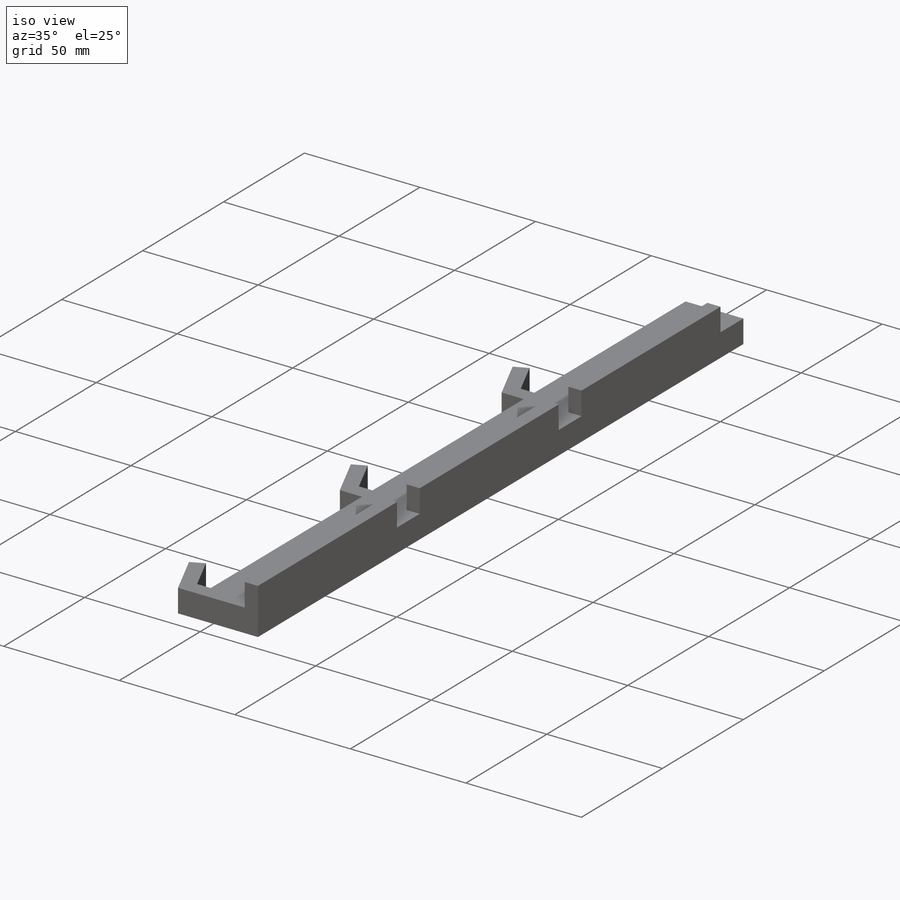
[diagram: iso view]
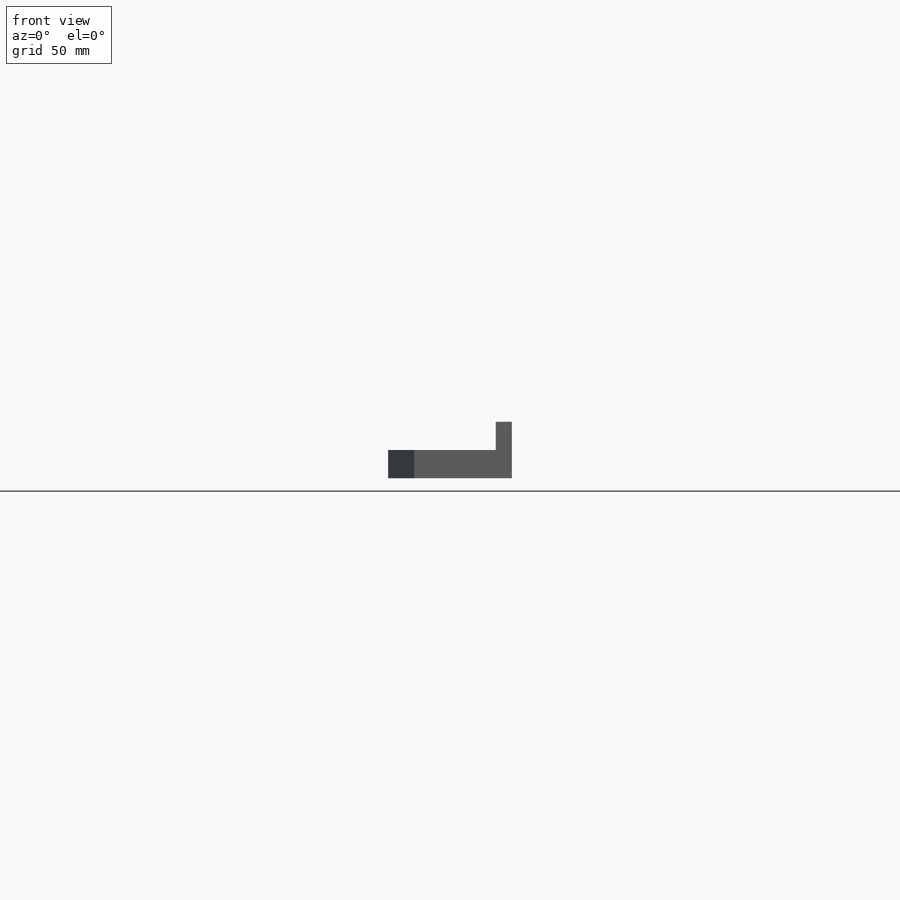
[diagram: front view]
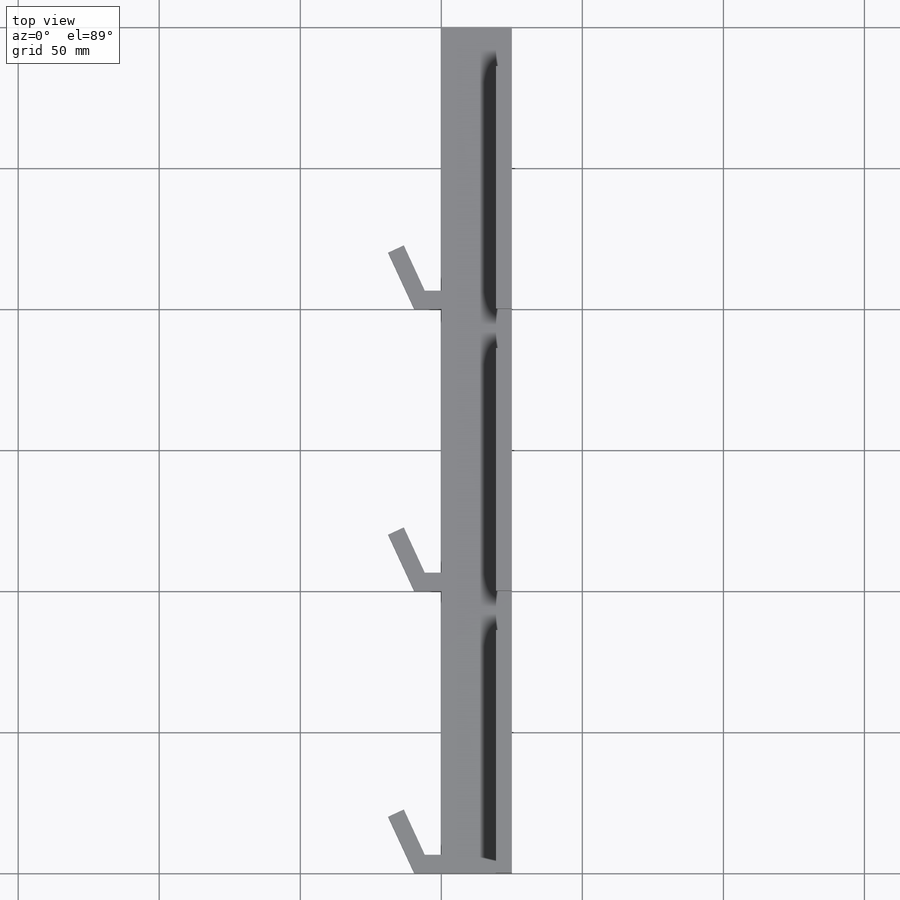
[diagram: top view]
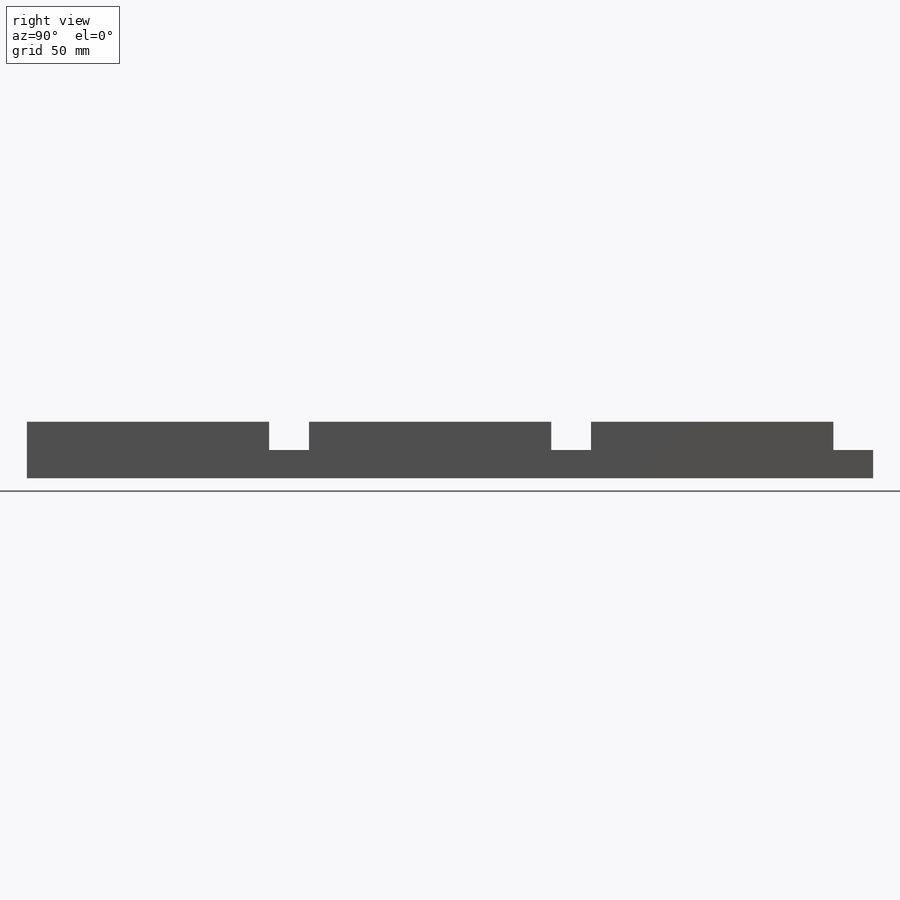
[diagram: right view]
SOLIDWORKS PART (.sldprt)
format: sldprt  version: not decoded by parser v0  size: 642,560 bytes
history: native  units: mm
features: sketch x5, extrude x4, plane x3, material x1, pattern_linear x1 (+10 scaffold rows collapsed)
feature tree (24):
  scaffold x10  (default folders/planes/origin — collapsed)
  material  "Baustahl Künz"
  plane  "Ebene vorne"
  plane  "Ebene oben"
  plane  "Ebene rechts"
  sketch  "Steuerskizze"  dims[c1.D1=~297.789766mm c2.D1=300.0mm]
  sketch  "Skizze1"  dims[c1.D1=~54.521625mm c2.D1=100.0mm c2.D2=~28.739165mm c3.D2=25.0mm]
  extrude  "Aufsatz-Linear austragen1"  Depth=10mm
  sketch  "Skizze3"
  extrude  "Aufsatz-Linear austragen2"  [1 undecoded]
  sketch  "Skizze4"
  extrude  "Aufsatz-Linear austragen3"  Depth=10mm
  extrude  "Aufsatz-Linear austragen4"  [1 undecoded]
  sketch  "Skizze4<2>"  dims[D1=10.0mm]
  pattern_linear  "Lineares Muster1"  Count1=3 Count2=1 Spacing1=100mm Spacing2=10mm
decode coverage: 6 of 10 modeling features carry decoded parameters
note: ~ marks probable driven/reference dimensions
note: 2 parameter values undecoded
note: suppression state not decoded; provenance and decode notes live in map.json
